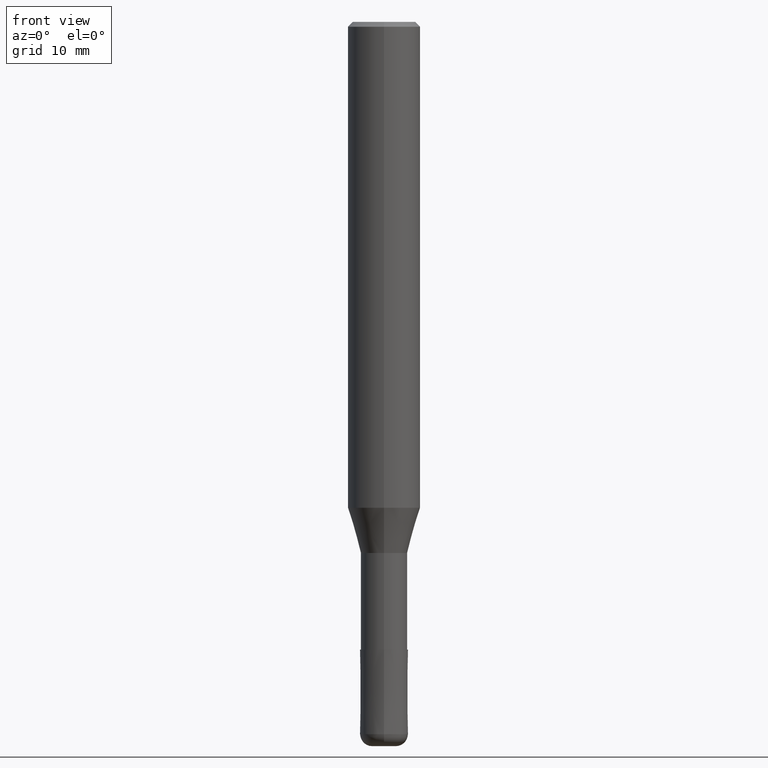
[diagram: clean part render]
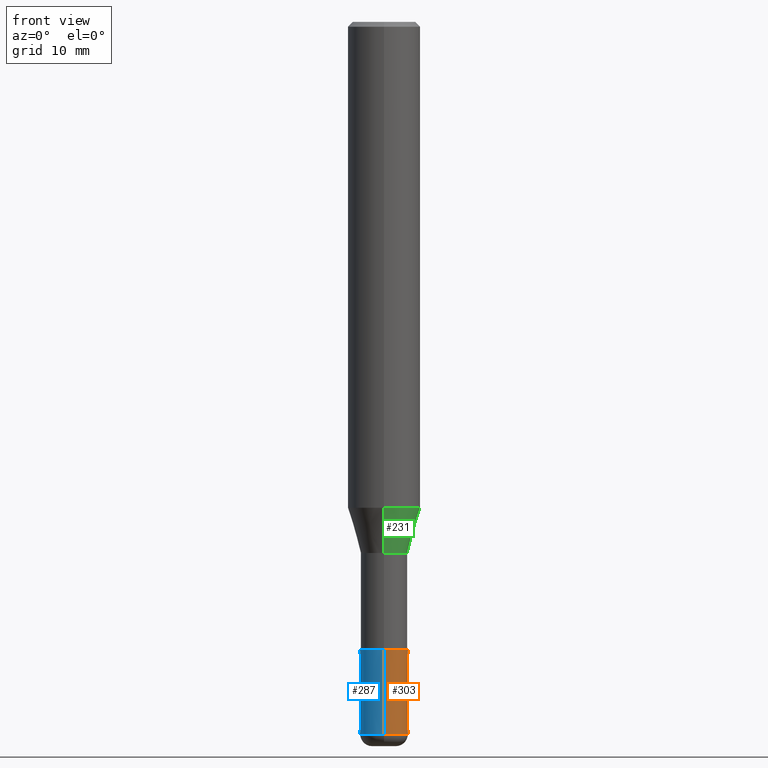
[diagram: same view with three faces highlighted in distinct colors, each labeled with its STEP entity id]
A machine part, front view with three faces highlighted in distinct colors.
Their STEP definitions:

[orange] entity #303 — the highlighted conical surface has half-angle 0.001 deg.
#163=VERTEX_POINT('',#374);
#181=VERTEX_POINT('',#393);
#185=EDGE_CURVE('',#255,#163,#397,.T.);
#209=EDGE_CURVE('',#251,#181,#424,.T.);
#251=VERTEX_POINT('',#475);
#255=VERTEX_POINT('',#479);
#301=EDGE_CURVE('',#255,#181,#529,.T.);
#303=ADVANCED_FACE('',(#531),#532,.T.);
#305=EDGE_CURVE('',#163,#251,#534,.T.);
#374=CARTESIAN_POINT('',(0.0,2.0,-59.0));
#393=CARTESIAN_POINT('',(2.44909024700937E-016,-1.9999,-52.0));
#397=LINE('',#634,#635);
#424=LINE('',#670,#671);
#475=CARTESIAN_POINT('',(2.44921270764476E-016,-2.0,-59.0));
#479=CARTESIAN_POINT('',(0.0,1.9999,-52.0));
#529=CIRCLE('',#803,1.9999);
#531=FACE_OUTER_BOUND('',#805,.T.);
#532=CONICAL_SURFACE('',#806,1.99995,1.42857142847409E-005);
#534=CIRCLE('',#809,2.0);
#634=CARTESIAN_POINT('',(-2.44915147732706E-016,1.99995,-55.5));
#635=VECTOR('',#902,1.0);
#670=CARTESIAN_POINT('',(2.44915147732706E-016,-1.99995,-55.5));
#671=VECTOR('',#941,1.0);
#803=AXIS2_PLACEMENT_3D('',#1071,#1072,#1073);
#805=EDGE_LOOP('',(#1075,#1076,#1077,#1078));
#806=AXIS2_PLACEMENT_3D('',#1079,#1080,#1081);
#809=AXIS2_PLACEMENT_3D('',#1082,#1083,#1084);
#902=DIRECTION('',(-1.74943764813898E-021,1.4285714284255E-005,-0.999999999897959));
#941=DIRECTION('',(-1.74943764813897E-021,1.4285714284255E-005,0.999999999897959));
#1071=CARTESIAN_POINT('',(0.0,0.0,-52.0));
#1072=DIRECTION('',(0.0,0.0,-1.0));
#1073=DIRECTION('',(0.0,1.0,0.0));
#1075=ORIENTED_EDGE('',*,*,#185,.F.);
#1076=ORIENTED_EDGE('',*,*,#301,.T.);
#1077=ORIENTED_EDGE('',*,*,#209,.F.);
#1078=ORIENTED_EDGE('',*,*,#305,.F.);
#1079=CARTESIAN_POINT('',(0.0,0.0,-55.5));
#1080=DIRECTION('',(0.0,-0.0,-1.0));
#1081=DIRECTION('',(0.0,1.0,0.0));
#1082=CARTESIAN_POINT('',(0.0,0.0,-59.0));
#1083=DIRECTION('',(0.0,0.0,-1.0));
#1084=DIRECTION('',(0.0,1.0,0.0));

[blue] entity #287 — the highlighted conical surface has half-angle 0.001 deg.
#163=VERTEX_POINT('',#374);
#181=VERTEX_POINT('',#393);
#185=EDGE_CURVE('',#255,#163,#397,.T.);
#209=EDGE_CURVE('',#251,#181,#424,.T.);
#219=EDGE_CURVE('',#251,#163,#437,.T.);
#251=VERTEX_POINT('',#475);
#255=VERTEX_POINT('',#479);
#287=ADVANCED_FACE('',(#513),#514,.T.);
#291=EDGE_CURVE('',#181,#255,#519,.T.);
#374=CARTESIAN_POINT('',(0.0,2.0,-59.0));
#393=CARTESIAN_POINT('',(2.44909024700937E-016,-1.9999,-52.0));
#397=LINE('',#634,#635);
#424=LINE('',#670,#671);
#437=CIRCLE('',#688,2.0);
#475=CARTESIAN_POINT('',(2.44921270764476E-016,-2.0,-59.0));
#479=CARTESIAN_POINT('',(0.0,1.9999,-52.0));
#513=FACE_OUTER_BOUND('',#784,.T.);
#514=CONICAL_SURFACE('',#785,1.99995,1.42857142847409E-005);
#519=CIRCLE('',#791,1.9999);
#634=CARTESIAN_POINT('',(-2.44915147732706E-016,1.99995,-55.5));
#635=VECTOR('',#902,1.0);
#670=CARTESIAN_POINT('',(2.44915147732706E-016,-1.99995,-55.5));
#671=VECTOR('',#941,1.0);
#688=AXIS2_PLACEMENT_3D('',#962,#963,#964);
#784=EDGE_LOOP('',(#1050,#1051,#1052,#1053));
#785=AXIS2_PLACEMENT_3D('',#1054,#1055,#1056);
#791=AXIS2_PLACEMENT_3D('',#1065,#1066,#1067);
#902=DIRECTION('',(-1.74943764813898E-021,1.4285714284255E-005,-0.999999999897959));
#941=DIRECTION('',(-1.74943764813897E-021,1.4285714284255E-005,0.999999999897959));
#962=CARTESIAN_POINT('',(0.0,0.0,-59.0));
#963=DIRECTION('',(0.0,0.0,-1.0));
#964=DIRECTION('',(0.0,1.0,0.0));
#1050=ORIENTED_EDGE('',*,*,#185,.T.);
#1051=ORIENTED_EDGE('',*,*,#219,.F.);
#1052=ORIENTED_EDGE('',*,*,#209,.T.);
#1053=ORIENTED_EDGE('',*,*,#291,.T.);
#1054=CARTESIAN_POINT('',(0.0,0.0,-55.5));
#1055=DIRECTION('',(0.0,-0.0,-1.0));
#1056=DIRECTION('',(0.0,1.0,0.0));
#1065=CARTESIAN_POINT('',(0.0,0.0,-52.0));
#1066=DIRECTION('',(0.0,0.0,-1.0));
#1067=DIRECTION('',(0.0,1.0,0.0));

[green] entity #231 — the highlighted conical surface has half-angle 16 deg.
#137=VERTEX_POINT('',#344);
#175=VERTEX_POINT('',#386);
#203=VERTEX_POINT('',#417);
#231=ADVANCED_FACE('',(#453),#454,.T.);
#259=EDGE_CURVE('',#175,#137,#483,.T.);
#271=EDGE_CURVE('',#137,#203,#496,.T.);
#273=EDGE_CURVE('',#299,#175,#498,.T.);
#281=EDGE_CURVE('',#299,#203,#507,.T.);
#299=VERTEX_POINT('',#527);
#344=CARTESIAN_POINT('',(2.35730600079038E-016,-1.92495,-44.0));
#386=CARTESIAN_POINT('',(0.0,1.92495,-44.0));
#417=CARTESIAN_POINT('',(3.67375783114944E-016,-2.99995,-40.251));
#453=FACE_OUTER_BOUND('',#706,.T.);
#454=CONICAL_SURFACE('',#707,2.46245,0.279250597330102);
#483=CIRCLE('',#746,1.92495);
#496=LINE('',#761,#762);
#498=LINE('',#765,#766);
#507=CIRCLE('',#779,2.99995);
#527=CARTESIAN_POINT('',(0.0,2.99995,-40.251));
#706=EDGE_LOOP('',(#988,#989,#990,#991));
#707=AXIS2_PLACEMENT_3D('',#992,#993,#994);
#746=AXIS2_PLACEMENT_3D('',#1019,#1020,#1021);
#761=CARTESIAN_POINT('',(3.01553191596991E-016,-2.46245,-42.1255));
#762=VECTOR('',#1033,1.0);
#765=CARTESIAN_POINT('',(-3.01553191596991E-016,2.46245,-42.1255));
#766=VECTOR('',#1034,1.0);
#779=AXIS2_PLACEMENT_3D('',#1045,#1046,#1047);
#988=ORIENTED_EDGE('',*,*,#273,.F.);
#989=ORIENTED_EDGE('',*,*,#281,.T.);
#990=ORIENTED_EDGE('',*,*,#271,.F.);
#991=ORIENTED_EDGE('',*,*,#259,.F.);
#992=CARTESIAN_POINT('',(0.0,0.0,-42.1255));
#993=DIRECTION('',(-0.0,-0.0,1.0));
#994=DIRECTION('',(0.0,1.0,0.0));
#1019=CARTESIAN_POINT('',(0.0,0.0,-44.0));
#1020=DIRECTION('',(0.0,0.0,-1.0));
#1021=DIRECTION('',(0.0,1.0,0.0));
#1033=DIRECTION('',(3.37544805257287E-017,-0.275635353518871,0.961262270085811));
#1034=DIRECTION('',(3.37544805257286E-017,-0.275635353518871,-0.961262270085811));
#1045=CARTESIAN_POINT('',(0.0,0.0,-40.251));
#1046=DIRECTION('',(0.0,0.0,-1.0));
#1047=DIRECTION('',(0.0,1.0,0.0));